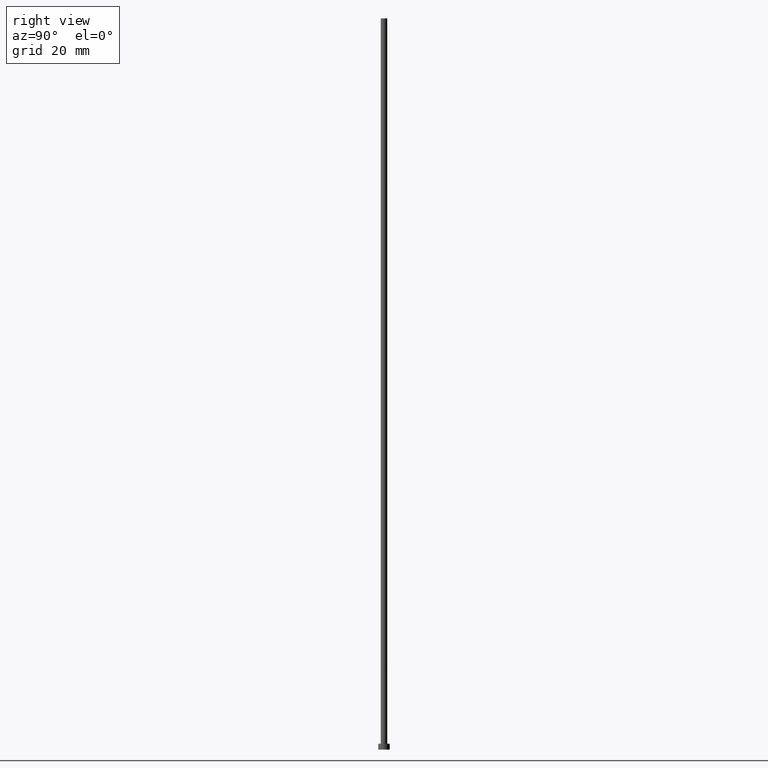
[diagram: clean part render]
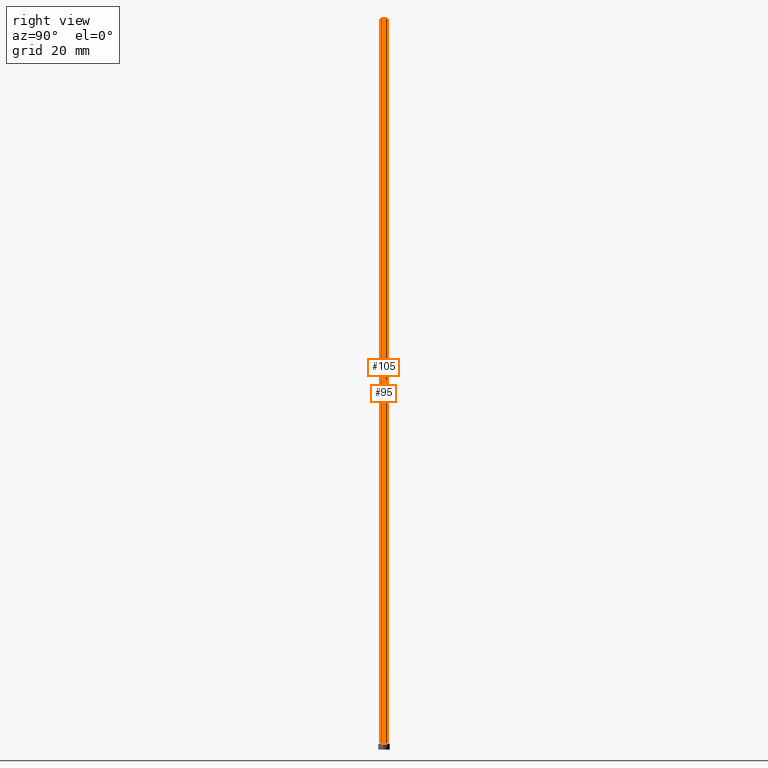
[diagram: same view with one multi-face feature highlighted, each face labeled with its STEP entity id]
A machine part, right view. The highlighted faces form ONE feature: a constant-radius fillet chain: 2 tangent blend faces with common blend radius 1.1 mm. The faces share edges in the B-rep.
Their STEP definitions:
[1] entity #105 (Cylinder):
#11 = DIRECTION ( 'NONE',  ( -1.000000000000000000, 0.000000000000000000, 0.000000000000000000 ) ) ;
#21 = EDGE_LOOP ( 'NONE', ( #87, #64, #128, #108 ) ) ;
#29 = DIRECTION ( 'NONE',  ( -0.000000000000000000, -0.000000000000000000, -1.000000000000000000 ) ) ;
#32 = CARTESIAN_POINT ( 'NONE',  ( -1.100000000000000089, 0.000000000000000000, 2.000000000000000000 ) ) ;
#39 = VERTEX_POINT ( 'NONE', #111 ) ;
#42 = AXIS2_PLACEMENT_3D ( 'NONE', #153, #231, #97 ) ;
#46 = DIRECTION ( 'NONE',  ( -0.000000000000000000, -0.000000000000000000, -1.000000000000000000 ) ) ;
#48 = CARTESIAN_POINT ( 'NONE',  ( 0.000000000000000000, 0.000000000000000000, 250.0000000000000000 ) ) ;
#51 = VECTOR ( 'NONE', #66, 1000.000000000000000 ) ;
#58 = VERTEX_POINT ( 'NONE', #118 ) ;
#64 = ORIENTED_EDGE ( 'NONE', *, *, #212, .F. ) ;
#66 = DIRECTION ( 'NONE',  ( -0.000000000000000000, -0.000000000000000000, -1.000000000000000000 ) ) ;
#72 = EDGE_CURVE ( 'NONE', #84, #238, #113, .T. ) ;
#74 = CARTESIAN_POINT ( 'NONE',  ( -1.100000000000000089, 0.000000000000000000, 250.0000000000000000 ) ) ;
#76 = DIRECTION ( 'NONE',  ( 0.000000000000000000, 0.000000000000000000, 1.000000000000000000 ) ) ;
#77 = EDGE_CURVE ( 'NONE', #58, #39, #211, .T. ) ;
#84 = VERTEX_POINT ( 'NONE', #200 ) ;
#87 = ORIENTED_EDGE ( 'NONE', *, *, #77, .F. ) ;
#97 = DIRECTION ( 'NONE',  ( 1.000000000000000000, 0.000000000000000000, 0.000000000000000000 ) ) ;
#103 = AXIS2_PLACEMENT_3D ( 'NONE', #48, #76, #137 ) ;
#105 = ADVANCED_FACE ( 'NONE', ( #135 ), #245, .T. ) ;
#108 = ORIENTED_EDGE ( 'NONE', *, *, #122, .T. ) ;
#111 = CARTESIAN_POINT ( 'NONE',  ( 1.100000000000000089, 1.347111479062088503E-16, 2.000000000000000000 ) ) ;
#113 = LINE ( 'NONE', #74, #51 ) ;
#118 = CARTESIAN_POINT ( 'NONE',  ( 1.100000000000000089, 1.347111479062088503E-16, 250.0000000000000000 ) ) ;
#122 = EDGE_CURVE ( 'NONE', #238, #39, #131, .T. ) ;
#128 = ORIENTED_EDGE ( 'NONE', *, *, #72, .T. ) ;
#131 = CIRCLE ( 'NONE', #42, 1.100000000000000089 ) ;
#135 = FACE_OUTER_BOUND ( 'NONE', #21, .T. ) ;
#137 = DIRECTION ( 'NONE',  ( 1.000000000000000000, 0.000000000000000000, 0.000000000000000000 ) ) ;
#146 = VECTOR ( 'NONE', #46, 1000.000000000000000 ) ;
#149 = CIRCLE ( 'NONE', #103, 1.100000000000000089 ) ;
#153 = CARTESIAN_POINT ( 'NONE',  ( 0.000000000000000000, 0.000000000000000000, 2.000000000000000000 ) ) ;
#190 = AXIS2_PLACEMENT_3D ( 'NONE', #215, #29, #11 ) ;
#200 = CARTESIAN_POINT ( 'NONE',  ( -1.100000000000000089, 0.000000000000000000, 250.0000000000000000 ) ) ;
#211 = LINE ( 'NONE', #213, #146 ) ;
#212 = EDGE_CURVE ( 'NONE', #84, #58, #149, .T. ) ;
#213 = CARTESIAN_POINT ( 'NONE',  ( 1.100000000000000089, 1.347111479062088503E-16, 250.0000000000000000 ) ) ;
#215 = CARTESIAN_POINT ( 'NONE',  ( 0.000000000000000000, 0.000000000000000000, 250.0000000000000000 ) ) ;
#231 = DIRECTION ( 'NONE',  ( 0.000000000000000000, 0.000000000000000000, 1.000000000000000000 ) ) ;
#238 = VERTEX_POINT ( 'NONE', #32 ) ;
#245 = CYLINDRICAL_SURFACE ( 'NONE', #190, 1.100000000000000089 ) ;
[2] entity #95 (Cylinder):
#2 = CIRCLE ( 'NONE', #180, 1.100000000000000089 ) ;
#6 = CYLINDRICAL_SURFACE ( 'NONE', #209, 1.100000000000000089 ) ;
#16 = DIRECTION ( 'NONE',  ( 0.000000000000000000, 0.000000000000000000, 1.000000000000000000 ) ) ;
#32 = CARTESIAN_POINT ( 'NONE',  ( -1.100000000000000089, 0.000000000000000000, 2.000000000000000000 ) ) ;
#39 = VERTEX_POINT ( 'NONE', #111 ) ;
#43 = DIRECTION ( 'NONE',  ( 1.000000000000000000, 0.000000000000000000, 0.000000000000000000 ) ) ;
#46 = DIRECTION ( 'NONE',  ( -0.000000000000000000, -0.000000000000000000, -1.000000000000000000 ) ) ;
#51 = VECTOR ( 'NONE', #66, 1000.000000000000000 ) ;
#58 = VERTEX_POINT ( 'NONE', #118 ) ;
#63 = ORIENTED_EDGE ( 'NONE', *, *, #252, .T. ) ;
#66 = DIRECTION ( 'NONE',  ( -0.000000000000000000, -0.000000000000000000, -1.000000000000000000 ) ) ;
#70 = CARTESIAN_POINT ( 'NONE',  ( 0.000000000000000000, 0.000000000000000000, 250.0000000000000000 ) ) ;
#72 = EDGE_CURVE ( 'NONE', #84, #238, #113, .T. ) ;
#74 = CARTESIAN_POINT ( 'NONE',  ( -1.100000000000000089, 0.000000000000000000, 250.0000000000000000 ) ) ;
#77 = EDGE_CURVE ( 'NONE', #58, #39, #211, .T. ) ;
#84 = VERTEX_POINT ( 'NONE', #200 ) ;
#88 = DIRECTION ( 'NONE',  ( 0.000000000000000000, 0.000000000000000000, 1.000000000000000000 ) ) ;
#95 = ADVANCED_FACE ( 'NONE', ( #114 ), #6, .T. ) ;
#111 = CARTESIAN_POINT ( 'NONE',  ( 1.100000000000000089, 1.347111479062088503E-16, 2.000000000000000000 ) ) ;
#113 = LINE ( 'NONE', #74, #51 ) ;
#114 = FACE_OUTER_BOUND ( 'NONE', #168, .T. ) ;
#115 = CARTESIAN_POINT ( 'NONE',  ( 0.000000000000000000, 0.000000000000000000, 250.0000000000000000 ) ) ;
#116 = EDGE_CURVE ( 'NONE', #58, #84, #2, .T. ) ;
#118 = CARTESIAN_POINT ( 'NONE',  ( 1.100000000000000089, 1.347111479062088503E-16, 250.0000000000000000 ) ) ;
#123 = AXIS2_PLACEMENT_3D ( 'NONE', #145, #16, #124 ) ;
#124 = DIRECTION ( 'NONE',  ( 1.000000000000000000, 0.000000000000000000, 0.000000000000000000 ) ) ;
#132 = DIRECTION ( 'NONE',  ( -0.000000000000000000, -0.000000000000000000, -1.000000000000000000 ) ) ;
#145 = CARTESIAN_POINT ( 'NONE',  ( 0.000000000000000000, 0.000000000000000000, 2.000000000000000000 ) ) ;
#146 = VECTOR ( 'NONE', #46, 1000.000000000000000 ) ;
#168 = EDGE_LOOP ( 'NONE', ( #241, #204, #63, #240 ) ) ;
#169 = CIRCLE ( 'NONE', #123, 1.100000000000000089 ) ;
#174 = DIRECTION ( 'NONE',  ( -1.000000000000000000, 0.000000000000000000, 0.000000000000000000 ) ) ;
#180 = AXIS2_PLACEMENT_3D ( 'NONE', #115, #88, #43 ) ;
#200 = CARTESIAN_POINT ( 'NONE',  ( -1.100000000000000089, 0.000000000000000000, 250.0000000000000000 ) ) ;
#204 = ORIENTED_EDGE ( 'NONE', *, *, #77, .T. ) ;
#209 = AXIS2_PLACEMENT_3D ( 'NONE', #70, #132, #174 ) ;
#211 = LINE ( 'NONE', #213, #146 ) ;
#213 = CARTESIAN_POINT ( 'NONE',  ( 1.100000000000000089, 1.347111479062088503E-16, 250.0000000000000000 ) ) ;
#238 = VERTEX_POINT ( 'NONE', #32 ) ;
#240 = ORIENTED_EDGE ( 'NONE', *, *, #72, .F. ) ;
#241 = ORIENTED_EDGE ( 'NONE', *, *, #116, .F. ) ;
#252 = EDGE_CURVE ( 'NONE', #39, #238, #169, .T. ) ;